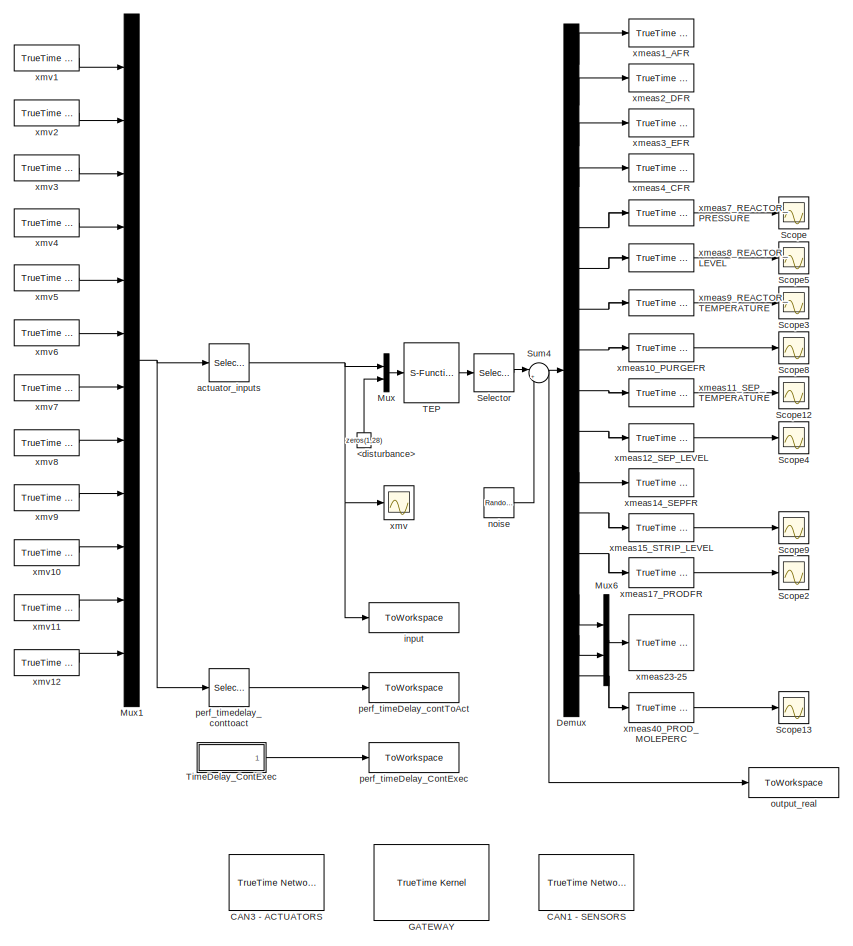
[diagram: root canvas - part 1/4, top left region]
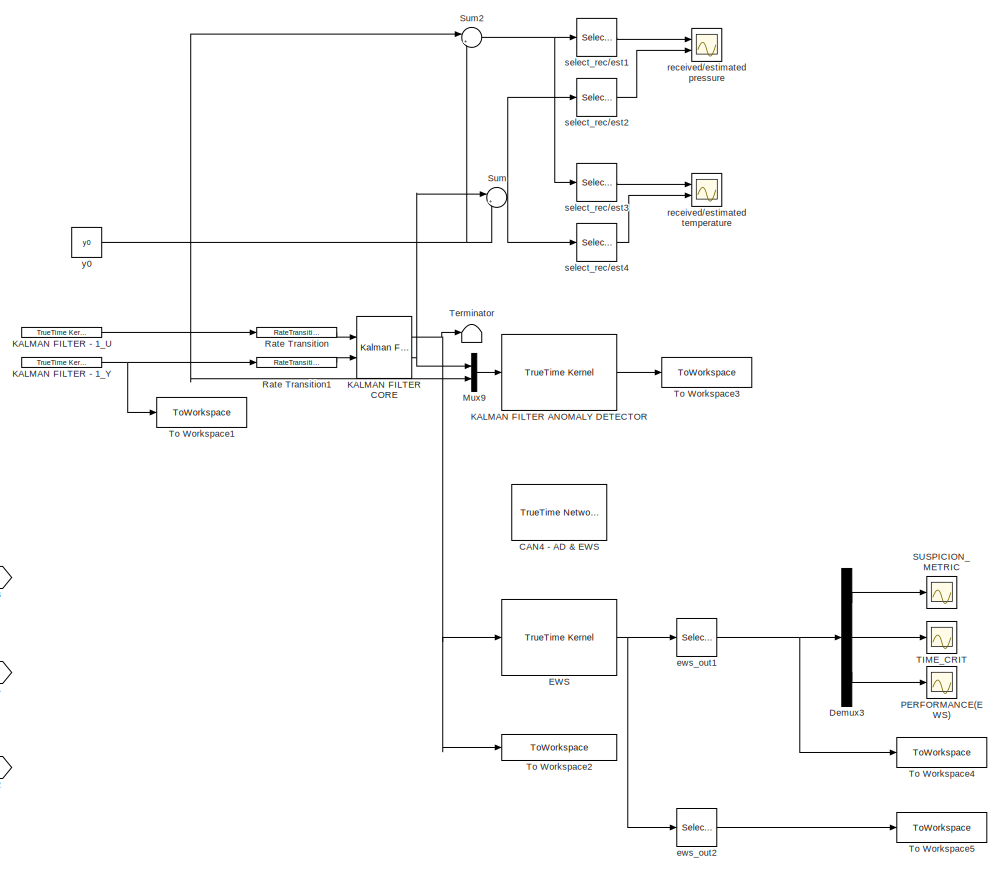
[diagram: root canvas - part 2/4, middle right region]
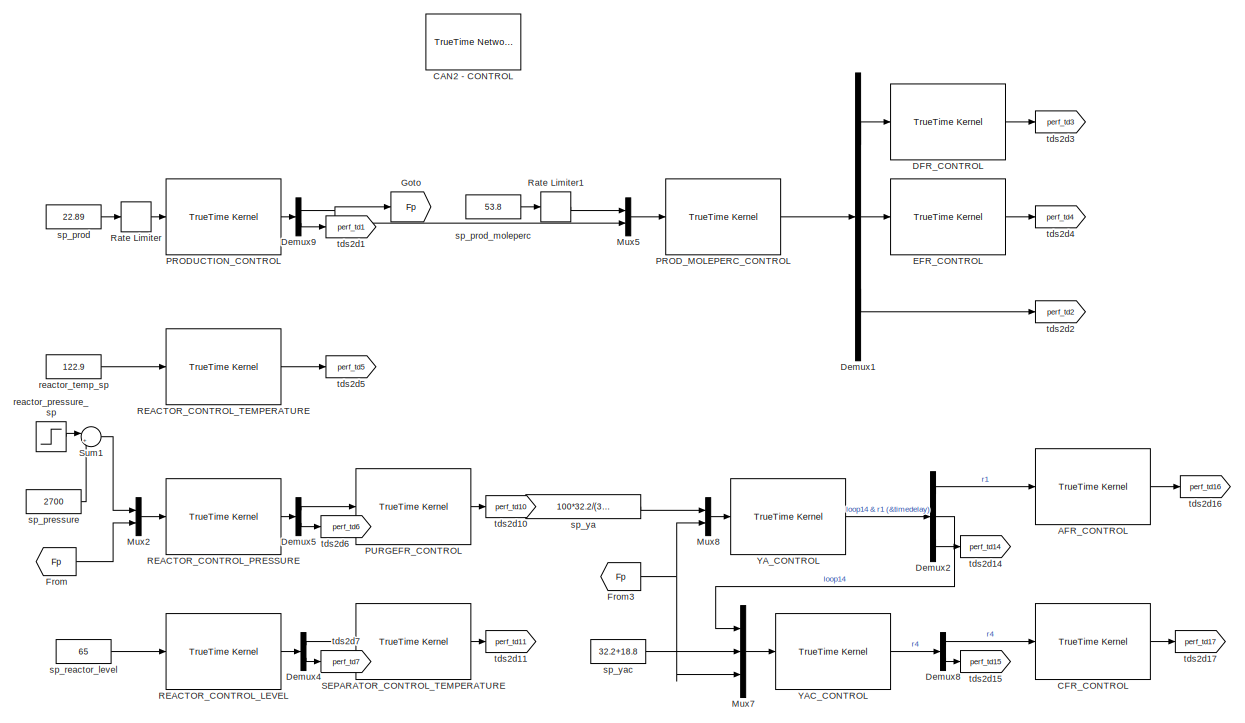
[diagram: root canvas - part 3/4, bottom left region]
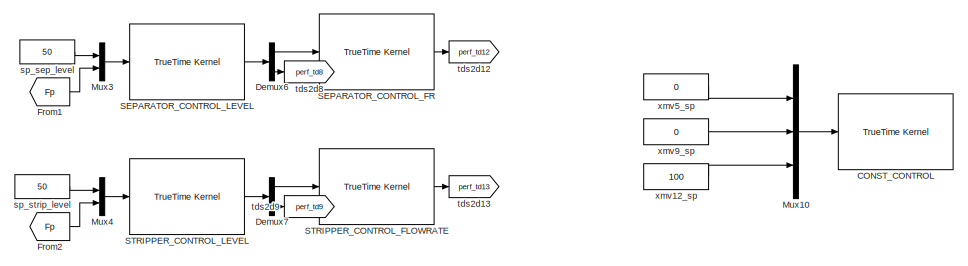
[diagram: root canvas - part 4/4, bottom left region]
MODEL slx_8490b7655759
KIND model
CONFIG AbsTol = auto
CONFIG EnableMultiTasking = on
CONFIG FixedStep = auto
CONFIG MaxStep = auto
CONFIG MinStep = auto
CONFIG PreLoadFcn = run('<path>\init_truetime');\naddpath('_tt');
CONFIG RelTol = 1e-3
CONFIG SampleTimeConstraint = Unconstrained
CONFIG SolverName = ode15s
CONFIG StartTime = 0.0
CONFIG StopTime = 2
BLOCK [Constant] <disturbance>
  NameLocation = right
  Value = zeros(1,28)
BLOCK [Reference] AFR_CONTROL  REF=truetime/TrueTime Kernel  (lib defined in slx_0362a698a4ec)
  Ports = [1, 1]
  SourceBlock = truetime/TrueTime Kernel
BLOCK [Reference] CAN1 - SENSORS  REF=truetime/TrueTime Network  (lib defined in slx_0362a698a4ec)
  Ports = []
  SourceBlock = truetime/TrueTime Network
  SourceType = Real-Time Network
BLOCK [Reference] CAN2 - CONTROL  REF=truetime/TrueTime Network  (lib defined in slx_0362a698a4ec)
  Ports = []
  SourceBlock = truetime/TrueTime Network
  SourceType = Real-Time Network
BLOCK [Reference] CAN3 - ACTUATORS  REF=truetime/TrueTime Network  (lib defined in slx_0362a698a4ec)
  Ports = []
  SourceBlock = truetime/TrueTime Network
  SourceType = Real-Time Network
BLOCK [Reference] CAN4 - AD & EWS  REF=truetime/TrueTime Network  (lib defined in slx_0362a698a4ec)
  Ports = []
  SourceBlock = truetime/TrueTime Network
  SourceType = Real-Time Network
BLOCK [Reference] CFR_CONTROL  REF=truetime/TrueTime Kernel  (lib defined in slx_0362a698a4ec)
  Ports = [1, 1]
  SourceBlock = truetime/TrueTime Kernel
BLOCK [Reference] CONST_CONTROL  REF=truetime/TrueTime Kernel  (lib defined in slx_0362a698a4ec)
  Ports = [1]
  SourceBlock = truetime/TrueTime Kernel
BLOCK [Reference] DFR_CONTROL  REF=truetime/TrueTime Kernel  (lib defined in slx_0362a698a4ec)
  Ports = [1, 1]
  SourceBlock = truetime/TrueTime Kernel
BLOCK [Demux] Demux
  DisplayOption = none
  Outputs = 16
  Ports = [1, 16]
BLOCK [Demux] Demux1
  Outputs = 3
  Ports = [1, 3]
BLOCK [Demux] Demux2
  Outputs = 3
  Ports = [1, 3]
BLOCK [Demux] Demux3
  Outputs = 3
  Ports = [1, 3]
BLOCK [Demux] Demux4
  Outputs = 2
  Ports = [1, 2]
BLOCK [Demux] Demux5
  Outputs = 2
  Ports = [1, 2]
BLOCK [Demux] Demux6
  Outputs = 2
  Ports = [1, 2]
BLOCK [Demux] Demux7
  Outputs = 2
  Ports = [1, 2]
BLOCK [Demux] Demux8
  Outputs = 2
  Ports = [1, 2]
BLOCK [Demux] Demux9
  Outputs = 2
  Ports = [1, 2]
BLOCK [Reference] EFR_CONTROL  REF=truetime/TrueTime Kernel  (lib defined in slx_0362a698a4ec)
  Ports = [1, 1]
  SourceBlock = truetime/TrueTime Kernel
BLOCK [Reference] EWS  REF=truetime/TrueTime Kernel  (lib defined in slx_0362a698a4ec)
  Ports = [1, 1]
  SourceBlock = truetime/TrueTime Kernel
BLOCK [From] From
  GotoTag = Fp
BLOCK [From] From1
  GotoTag = Fp
BLOCK [From] From2
  GotoTag = Fp
BLOCK [From] From3
  GotoTag = Fp
BLOCK [Reference] GATEWAY  REF=truetime/TrueTime Kernel  (lib defined in slx_0362a698a4ec)
  Ports = []
  SourceBlock = truetime/TrueTime Kernel
BLOCK [Goto] Goto
  GotoTag = Fp
BLOCK [Reference] KALMAN FILTER - 1_U  REF=truetime/TrueTime Kernel  (lib defined in slx_0362a698a4ec)
  Ports = [0, 1]
  SourceBlock = truetime/TrueTime Kernel
BLOCK [Reference] KALMAN FILTER - 1_Y  REF=truetime/TrueTime Kernel  (lib defined in slx_0362a698a4ec)
  Ports = [0, 1]
  SourceBlock = truetime/TrueTime Kernel
BLOCK [Reference] KALMAN FILTER ANOMALY DETECTOR  REF=truetime/TrueTime Kernel  (lib defined in slx_0362a698a4ec)
  Ports = [1, 1]
  SourceBlock = truetime/TrueTime Kernel
BLOCK [Reference] KALMAN FILTER CORE  REF=ctrlSharedLib/Kalman Filter
  Ports = [2, 2]
  SourceBlock = ctrlSharedLib/Kalman Filter
  SourceProductBaseCode = CT,ID
  SourceType = ctrlKalmanFilter
BLOCK [Mux] Mux
  DisplayOption = bar
  Inputs = 2
  Ports = [2, 1]
BLOCK [Mux] Mux1
  DisplayOption = bar
  Inputs = 12
  Ports = [12, 1]
BLOCK [Mux] Mux10
  DisplayOption = bar
  Inputs = 3
  Ports = [3, 1]
BLOCK [Mux] Mux2
  DisplayOption = bar
  Inputs = 2
  Ports = [2, 1]
BLOCK [Mux] Mux3
  DisplayOption = bar
  Inputs = 2
  Ports = [2, 1]
BLOCK [Mux] Mux4
  DisplayOption = bar
  Inputs = 2
  Ports = [2, 1]
BLOCK [Mux] Mux5
  DisplayOption = bar
  Inputs = 2
  Ports = [2, 1]
BLOCK [Mux] Mux6
  DisplayOption = bar
  Inputs = 2
  Ports = [2, 1]
BLOCK [Mux] Mux7
  DisplayOption = bar
  Inputs = 3
  Ports = [3, 1]
BLOCK [Mux] Mux8
  DisplayOption = bar
  Inputs = 2
  Ports = [2, 1]
BLOCK [Mux] Mux9
  DisplayOption = bar
  Inputs = 2
  Ports = [2, 1]
BLOCK [Scope] PERFORMANCE(EWS)
  Floating = off
  NumInputPorts = 1
  Ports = [1]
  ScopeSpecificationString = Simulink.scopes.TimeScopeBlockCfg('CurrentConfiguration', extmgr.ConfigurationSet(extmgr.Configuration('Core','General UI',true),extmgr.Configuration('Core','Source UI',true),extmgr.Configuration('Sources','WiredSimulink',true,'DataLoggingVariableName','ScopeData1'),extmgr.Configuration('Visuals','Time Domain',true,'SerializedDisplays',{struct('MinYLimReal','0.80981','MaxYLimReal','0.90389','YLabe...<+1481ch>
BLOCK [Reference] PRODUCTION_CONTROL  REF=truetime/TrueTime Kernel  (lib defined in slx_0362a698a4ec)
  Ports = [1, 1]
  SourceBlock = truetime/TrueTime Kernel
BLOCK [Reference] PROD_MOLEPERC_CONTROL  REF=truetime/TrueTime Kernel  (lib defined in slx_0362a698a4ec)
  Ports = [1, 1]
  SourceBlock = truetime/TrueTime Kernel
BLOCK [Reference] PURGEFR_CONTROL  REF=truetime/TrueTime Kernel  (lib defined in slx_0362a698a4ec)
  Ports = [1, 1]
  SourceBlock = truetime/TrueTime Kernel
BLOCK [Reference] REACTOR_CONTROL_LEVEL  REF=truetime/TrueTime Kernel  (lib defined in slx_0362a698a4ec)
  Ports = [1, 1]
  SourceBlock = truetime/TrueTime Kernel
BLOCK [Reference] REACTOR_CONTROL_PRESSURE  REF=truetime/TrueTime Kernel  (lib defined in slx_0362a698a4ec)
  Ports = [1, 1]
  SourceBlock = truetime/TrueTime Kernel
BLOCK [Reference] REACTOR_CONTROL_TEMPERATURE  REF=truetime/TrueTime Kernel  (lib defined in slx_0362a698a4ec)
  Ports = [1, 1]
  SourceBlock = truetime/TrueTime Kernel
BLOCK [RateLimiter] Rate Limiter
  FallingSlewLimit = -0.3*22.95/24
  RisingSlewLimit = 0.3*22.95/24
BLOCK [RateLimiter] Rate Limiter1
  FallingSlewLimit = -50/24
  RisingSlewLimit = 50/24
BLOCK [RateTransition] Rate Transition
  OutPortSampleTime = 5e-4
BLOCK [RateTransition] Rate Transition1
  OutPortSampleTime = 5e-4
BLOCK [Reference] SEPARATOR_CONTROL_FR  REF=truetime/TrueTime Kernel  (lib defined in slx_0362a698a4ec)
  Ports = [1, 1]
  SourceBlock = truetime/TrueTime Kernel
BLOCK [Reference] SEPARATOR_CONTROL_LEVEL  REF=truetime/TrueTime Kernel  (lib defined in slx_0362a698a4ec)
  Ports = [1, 1]
  SourceBlock = truetime/TrueTime Kernel
BLOCK [Reference] SEPARATOR_CONTROL_TEMPERATURE  REF=truetime/TrueTime Kernel  (lib defined in slx_0362a698a4ec)
  Ports = [1, 1]
  SourceBlock = truetime/TrueTime Kernel
BLOCK [Reference] STRIPPER_CONTROL_FLOWRATE  REF=truetime/TrueTime Kernel  (lib defined in slx_0362a698a4ec)
  Ports = [1, 1]
  SourceBlock = truetime/TrueTime Kernel
BLOCK [Reference] STRIPPER_CONTROL_LEVEL  REF=truetime/TrueTime Kernel  (lib defined in slx_0362a698a4ec)
  Ports = [1, 1]
  SourceBlock = truetime/TrueTime Kernel
BLOCK [Scope] SUSPICION_METRIC
  Floating = off
  NumInputPorts = 1
  Ports = [1]
  ScopeSpecificationString = Simulink.scopes.TimeScopeBlockCfg('CurrentConfiguration', extmgr.ConfigurationSet(extmgr.Configuration('Core','General UI',true),extmgr.Configuration('Core','Source UI',true),extmgr.Configuration('Sources','WiredSimulink',true,'DataLoggingVariableName','ScopeData1'),extmgr.Configuration('Visuals','Time Domain',true,'SerializedDisplays',{struct('MinYLimReal','-0.03571','MaxYLimReal','0.32139','YLab...<+1483ch>
BLOCK [Scope] Scope
  Floating = off
  NumInputPorts = 1
  Ports = [1]
  ScopeSpecificationString = Simulink.scopes.TimeScopeBlockCfg('CurrentConfiguration', extmgr.ConfigurationSet(extmgr.Configuration('Core','General UI',true),extmgr.Configuration('Core','Source UI',true),extmgr.Configuration('Sources','WiredSimulink',true,'DataLoggingVariableName','ScopeData1'),extmgr.Configuration('Visuals','Time Domain',true,'SerializedDisplays',{struct('MinYLimReal','2348.77961','MaxYLimReal','2745.66621',...<+1461ch>
BLOCK [Scope] Scope12
  Floating = off
  NumInputPorts = 1
  Ports = [1]
  ScopeSpecificationString = Simulink.scopes.TimeScopeBlockCfg('CurrentConfiguration', extmgr.ConfigurationSet(extmgr.Configuration('Core','General UI',true),extmgr.Configuration('Core','Source UI',true),extmgr.Configuration('Sources','WiredSimulink',true,'DataLoggingVariableName','ScopeData2'),extmgr.Configuration('Visuals','Time Domain',true,'SerializedDisplays',{struct('MinYLimReal','71.09724','MaxYLimReal','99.69901','YLa...<+1449ch>
BLOCK [Scope] Scope13
  Floating = off
  NumInputPorts = 1
  Ports = [1]
  ScopeSpecificationString = Simulink.scopes.TimeScopeBlockCfg('CurrentConfiguration', extmgr.ConfigurationSet(extmgr.Configuration('Core','General UI',true),extmgr.Configuration('Core','Source UI',true),extmgr.Configuration('Sources','WiredSimulink',true,'DataLoggingVariableName','ScopeData3'),extmgr.Configuration('Visuals','Time Domain',true,'SerializedDisplays',{struct('MinYLimReal','53.24496','MaxYLimReal','55.16243','YLa...<+1450ch>
BLOCK [Scope] Scope2
  Floating = off
  NumInputPorts = 1
  Ports = [1]
  ScopeSpecificationString = Simulink.scopes.TimeScopeBlockCfg('CurrentConfiguration', extmgr.ConfigurationSet(extmgr.Configuration('Core','General UI',true),extmgr.Configuration('Core','Source UI',true),extmgr.Configuration('Sources','WiredSimulink',true,'DataLoggingVariableName','ScopeData4'),extmgr.Configuration('Visuals','Time Domain',true,'SerializedDisplays',{struct('MinYLimReal','1.3748','MaxYLimReal','26.51506','YLabe...<+1441ch>
BLOCK [Scope] Scope3
  Floating = off
  NumInputPorts = 1
  Ports = [1]
  ScopeSpecificationString = Simulink.scopes.TimeScopeBlockCfg('CurrentConfiguration', extmgr.ConfigurationSet(extmgr.Configuration('Core','General UI',true),extmgr.Configuration('Core','Source UI',true),extmgr.Configuration('Sources','WiredSimulink',true,'DataLoggingVariableName','ScopeData5'),extmgr.Configuration('Visuals','Time Domain',true,'SerializedDisplays',{struct('MinYLimReal','33.79848','MaxYLimReal','158.93138','YL...<+1424ch>
BLOCK [Scope] Scope4
  Floating = off
  NumInputPorts = 1
  Ports = [1]
  ScopeSpecificationString = Simulink.scopes.TimeScopeBlockCfg('CurrentConfiguration', extmgr.ConfigurationSet(extmgr.Configuration('Core','General UI',true),extmgr.Configuration('Core','Source UI',true),extmgr.Configuration('Sources','WiredSimulink',true,'DataLoggingVariableName','ScopeData6'),extmgr.Configuration('Visuals','Time Domain',true,'SerializedDisplays',{struct('MinYLimReal','10.59593','MaxYLimReal','95.54926','YLa...<+1470ch>
BLOCK [Scope] Scope5
  Floating = off
  NumInputPorts = 1
  Ports = [1]
  ScopeSpecificationString = Simulink.scopes.TimeScopeBlockCfg('CurrentConfiguration', extmgr.ConfigurationSet(extmgr.Configuration('Core','General UI',true),extmgr.Configuration('Core','Source UI',true),extmgr.Configuration('Sources','WiredSimulink',true,'DataLoggingVariableName','ScopeData7'),extmgr.Configuration('Visuals','Time Domain',true,'SerializedDisplays',{struct('MinYLimReal','47.28151','MaxYLimReal','80.02784','YLa...<+1426ch>
BLOCK [Scope] Scope8
  Floating = off
  NumInputPorts = 1
  Ports = [1]
  ScopeSpecificationString = Simulink.scopes.TimeScopeBlockCfg('CurrentConfiguration', extmgr.ConfigurationSet(extmgr.Configuration('Core','General UI',true),extmgr.Configuration('Core','Source UI',true),extmgr.Configuration('Sources','WiredSimulink',true,'DataLoggingVariableName','ScopeData8'),extmgr.Configuration('Visuals','Time Domain',true,'SerializedDisplays',{struct('MinYLimReal','-0.41419','MaxYLimReal','0.6236','YLabe...<+1416ch>
BLOCK [Scope] Scope9
  Floating = off
  NumInputPorts = 1
  Ports = [1]
  ScopeSpecificationString = Simulink.scopes.TimeScopeBlockCfg('CurrentConfiguration', extmgr.ConfigurationSet(extmgr.Configuration('Core','General UI',true),extmgr.Configuration('Core','Source UI',true),extmgr.Configuration('Sources','WiredSimulink',true,'DataLoggingVariableName','ScopeData9'),extmgr.Configuration('Visuals','Time Domain',true,'SerializedDisplays',{struct('MinYLimReal','38.89071','MaxYLimReal','103.77988','YL...<+1450ch>
BLOCK [Selector] Selector
  IndexOptions = Index vector (dialog)
  Indices = [1:4, 7:12, 14, 15, 17, 23, 25, 40]
  InputPortWidth = 41
  OutputSizes = 1
  Ports = [1, 1]
BLOCK [Sum] Sum
  Inputs = |++
  Ports = [2, 1]
BLOCK [Sum] Sum1
  Inputs = |++
  Ports = [2, 1]
BLOCK [Sum] Sum2
  Inputs = |++
  Ports = [2, 1]
BLOCK [Sum] Sum4
  Inputs = |++
  Ports = [2, 1]
BLOCK [S-Function] TEP
  EnableBusSupport = off
  FunctionName = temexd_mod
  Parameters = [], [], 0
  Ports = [1, 1]
  SFcnIsStateOwnerBlock = off
  SFunctionDeploymentMode = off
BLOCK [Scope] TIME_CRIT
  Floating = off
  NumInputPorts = 1
  Ports = [1]
  ScopeSpecificationString = Simulink.scopes.TimeScopeBlockCfg('CurrentConfiguration', extmgr.ConfigurationSet(extmgr.Configuration('Core','General UI',true),extmgr.Configuration('Core','Source UI',true),extmgr.Configuration('Sources','WiredSimulink',true,'DataLoggingVariableName','ScopeData2'),extmgr.Configuration('Visuals','Time Domain',true,'SerializedDisplays',{struct('MinYLimReal','1.78655','MaxYLimReal','1.80731','YLabe...<+1481ch>
BLOCK [Terminator] Terminator
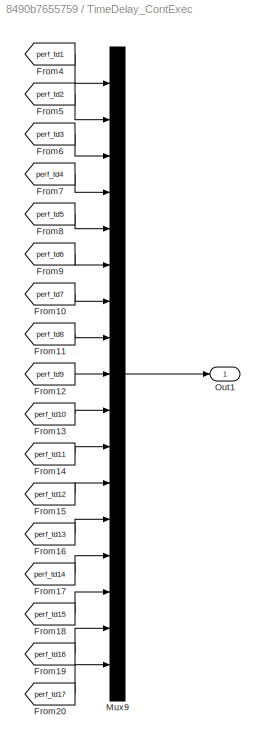
BLOCK [SubSystem] TimeDelay_ContExec
  Ports = [0, 1]
  RequestExecContextInheritance = off
BLOCK [From] TimeDelay_ContExec/From10
  GotoTag = perf_td7
  TagVisibility = global
BLOCK [From] TimeDelay_ContExec/From11
  GotoTag = perf_td8
  TagVisibility = global
BLOCK [From] TimeDelay_ContExec/From12
  GotoTag = perf_td9
  TagVisibility = global
BLOCK [From] TimeDelay_ContExec/From13
  GotoTag = perf_td10
  TagVisibility = global
BLOCK [From] TimeDelay_ContExec/From14
  GotoTag = perf_td11
  TagVisibility = global
BLOCK [From] TimeDelay_ContExec/From15
  GotoTag = perf_td12
  TagVisibility = global
BLOCK [From] TimeDelay_ContExec/From16
  GotoTag = perf_td13
  TagVisibility = global
BLOCK [From] TimeDelay_ContExec/From17
  GotoTag = perf_td14
  TagVisibility = global
BLOCK [From] TimeDelay_ContExec/From18
  GotoTag = perf_td15
  TagVisibility = global
BLOCK [From] TimeDelay_ContExec/From19
  GotoTag = perf_td16
  TagVisibility = global
BLOCK [From] TimeDelay_ContExec/From20
  GotoTag = perf_td17
  TagVisibility = global
BLOCK [From] TimeDelay_ContExec/From4
  GotoTag = perf_td1
  TagVisibility = global
BLOCK [From] TimeDelay_ContExec/From5
  GotoTag = perf_td2
  TagVisibility = global
BLOCK [From] TimeDelay_ContExec/From6
  GotoTag = perf_td3
  TagVisibility = global
BLOCK [From] TimeDelay_ContExec/From7
  GotoTag = perf_td4
  TagVisibility = global
BLOCK [From] TimeDelay_ContExec/From8
  GotoTag = perf_td5
  TagVisibility = global
BLOCK [From] TimeDelay_ContExec/From9
  GotoTag = perf_td6
  TagVisibility = global
BLOCK [Mux] TimeDelay_ContExec/Mux9
  DisplayOption = bar
  Inputs = 17
  Ports = [17, 1]
BLOCK [Outport] TimeDelay_ContExec/Out1
BLOCK [ToWorkspace] To Workspace1
  FixptAsFi = on
  MaxDataPoints = inf
  Ports = [1]
  SampleTime = 0.01
  VariableName = output_rec
BLOCK [ToWorkspace] To Workspace2
  FixptAsFi = on
  MaxDataPoints = inf
  Ports = [1]
  SampleTime = 0.01
  VariableName = states_estim
BLOCK [ToWorkspace] To Workspace3
  FixptAsFi = on
  MaxDataPoints = inf
  Ports = [1]
  SampleTime = 0.01
  VariableName = anomaly_detector
BLOCK [ToWorkspace] To Workspace4
  FixptAsFi = on
  MaxDataPoints = inf
  Ports = [1]
  SampleTime = 0.01
  VariableName = ews
BLOCK [ToWorkspace] To Workspace5
  FixptAsFi = on
  MaxDataPoints = inf
  Ports = [1]
  SampleTime = 0.01
  VariableName = ews_xinit
BLOCK [Reference] YAC_CONTROL  REF=truetime/TrueTime Kernel  (lib defined in slx_0362a698a4ec)
  Ports = [1, 1]
  SourceBlock = truetime/TrueTime Kernel
BLOCK [Reference] YA_CONTROL  REF=truetime/TrueTime Kernel  (lib defined in slx_0362a698a4ec)
  Ports = [1, 1]
  SourceBlock = truetime/TrueTime Kernel
BLOCK [Selector] actuator_inputs
  IndexOptions = Index vector (dialog)
  Indices = 1:2:23
  InputPortWidth = 24
  OutputSizes = 1
  Ports = [1, 1]
BLOCK [Selector] ews_out1
  IndexOptions = Index vector (dialog)
  Indices = 1:3
  InputPortWidth = size(ssid_est.A,1)+39+12+3
  OutputSizes = 1
  Ports = [1, 1]
BLOCK [Selector] ews_out2
  IndexOptions = Index vector (dialog)
  Indices = 4:(size(ssid_est.A,1)+39+12+3)
  InputPortWidth = size(ssid_est.A,1)+39+12+3
  OutputSizes = 1
  Ports = [1, 1]
BLOCK [ToWorkspace] input
  FixptAsFi = on
  MaxDataPoints = inf
  Ports = [1]
  SampleTime = 0.01
  VariableName = input
BLOCK [RandomNumber] noise
  Mean = zeros(16,1)
  SampleTime = 5e-4
  Variance = 0.01*ones(16,1)
BLOCK [ToWorkspace] output_real
  FixptAsFi = on
  MaxDataPoints = inf
  Ports = [1]
  SampleTime = 0.01
  VariableName = output_real
BLOCK [ToWorkspace] perf_timeDelay_ContExec
  FixptAsFi = on
  MaxDataPoints = inf
  Ports = [1]
  SampleTime = 0.01
  VariableName = perf_timeDelay_ContExec
BLOCK [ToWorkspace] perf_timeDelay_contToAct
  FixptAsFi = on
  MaxDataPoints = inf
  Ports = [1]
  SampleTime = 0.01
  VariableName = perf_timeDelay_contToAct
BLOCK [Selector] perf_timedelay_conttoact
  IndexOptions = Index vector (dialog)
  Indices = 2:2:24
  InputPortWidth = 24
  OutputSizes = 1
  Ports = [1, 1]
BLOCK [Step] reactor_pressure_sp
  After = 0
  SampleTime = 0
  Time = 40
BLOCK [Constant] reactor_temp_sp
  Value = 122.9
BLOCK [Scope] received//estimated pressure
  Floating = off
  NumInputPorts = 2
  Ports = [2]
  ScopeSpecificationString = Simulink.scopes.TimeScopeBlockCfg('CurrentConfiguration', extmgr.ConfigurationSet(extmgr.Configuration('Core','General UI',true),extmgr.Configuration('Core','Source UI',true),extmgr.Configuration('Sources','WiredSimulink',true,'DataLoggingVariableName','ScopeData5'),extmgr.Configuration('Visuals','Time Domain',true,'SerializedDisplays',{struct('MinYLimReal','2303.3011','MaxYLimReal','2769.66222','...<+1526ch>
BLOCK [Scope] received//estimated temperature
  Floating = off
  NumInputPorts = 2
  Ports = [2]
  ScopeSpecificationString = Simulink.scopes.TimeScopeBlockCfg('CurrentConfiguration', extmgr.ConfigurationSet(extmgr.Configuration('Core','General UI',true),extmgr.Configuration('Core','Source UI',true),extmgr.Configuration('Sources','WiredSimulink',true,'DataLoggingVariableName','ScopeData6'),extmgr.Configuration('Visuals','Time Domain',true,'SerializedDisplays',{struct('MinYLimReal','-141.13349','MaxYLimReal','697.92808','...<+1508ch>
BLOCK [Selector] select_rec//est1
  IndexOptions = Index vector (dialog)
  Indices = 5
  InputPortWidth = 16
  OutputSizes = 1
  Ports = [1, 1]
BLOCK [Selector] select_rec//est2
  IndexOptions = Index vector (dialog)
  Indices = 5
  InputPortWidth = 16
  OutputSizes = 1
  Ports = [1, 1]
BLOCK [Selector] select_rec//est3
  IndexOptions = Index vector (dialog)
  Indices = 7
  InputPortWidth = 16
  OutputSizes = 1
  Ports = [1, 1]
BLOCK [Selector] select_rec//est4
  IndexOptions = Index vector (dialog)
  Indices = 7
  InputPortWidth = 16
  OutputSizes = 1
  Ports = [1, 1]
BLOCK [Constant] sp_pressure
  Value = 2700
BLOCK [Constant] sp_prod
  Value = 22.89
BLOCK [Constant] sp_prod_moleperc
  Value = 53.8
BLOCK [Constant] sp_reactor_level
  Value = 65
BLOCK [Constant] sp_sep_level
  Value = 50
BLOCK [Constant] sp_strip_level
  Value = 50
BLOCK [Constant] sp_ya
  Value = 100*32.2/(32.2+18.8)
BLOCK [Constant] sp_yac
  Value = 32.2+18.8
BLOCK [Goto] tds2d1
  GotoTag = perf_td1
  TagVisibility = global
BLOCK [Goto] tds2d10
  GotoTag = perf_td10
  TagVisibility = global
BLOCK [Goto] tds2d11
  GotoTag = perf_td11
  TagVisibility = global
BLOCK [Goto] tds2d12
  GotoTag = perf_td12
  TagVisibility = global
BLOCK [Goto] tds2d13
  GotoTag = perf_td13
  TagVisibility = global
BLOCK [Goto] tds2d14
  GotoTag = perf_td14
  TagVisibility = global
BLOCK [Goto] tds2d15
  GotoTag = perf_td15
  TagVisibility = global
BLOCK [Goto] tds2d16
  GotoTag = perf_td16
  TagVisibility = global
BLOCK [Goto] tds2d17
  GotoTag = perf_td17
  TagVisibility = global
BLOCK [Goto] tds2d2
  GotoTag = perf_td2
  TagVisibility = global
BLOCK [Goto] tds2d3
  GotoTag = perf_td3
  TagVisibility = global
BLOCK [Goto] tds2d4
  GotoTag = perf_td4
  TagVisibility = global
BLOCK [Goto] tds2d5
  GotoTag = perf_td5
  TagVisibility = global
BLOCK [Goto] tds2d6
  GotoTag = perf_td6
  TagVisibility = global
BLOCK [Goto] tds2d7
  GotoTag = perf_td7
  TagVisibility = global
BLOCK [Goto] tds2d8
  GotoTag = perf_td8
  TagVisibility = global
BLOCK [Goto] tds2d9
  GotoTag = perf_td9
  TagVisibility = global
BLOCK [Reference] xmeas10_PURGEFR  REF=truetime/TrueTime Kernel  (lib defined in slx_0362a698a4ec)
  Ports = [1]
  SourceBlock = truetime/TrueTime Kernel
BLOCK [Reference] xmeas11_SEP_TEMPERATURE  REF=truetime/TrueTime Kernel  (lib defined in slx_0362a698a4ec)
  Ports = [1]
  SourceBlock = truetime/TrueTime Kernel
BLOCK [Reference] xmeas12_SEP_LEVEL  REF=truetime/TrueTime Kernel  (lib defined in slx_0362a698a4ec)
  Ports = [1]
  SourceBlock = truetime/TrueTime Kernel
BLOCK [Reference] xmeas14_SEPFR  REF=truetime/TrueTime Kernel  (lib defined in slx_0362a698a4ec)
  Ports = [1]
  SourceBlock = truetime/TrueTime Kernel
BLOCK [Reference] xmeas15_STRIP_LEVEL  REF=truetime/TrueTime Kernel  (lib defined in slx_0362a698a4ec)
  Ports = [1]
  SourceBlock = truetime/TrueTime Kernel
BLOCK [Reference] xmeas17_PRODFR  REF=truetime/TrueTime Kernel  (lib defined in slx_0362a698a4ec)
  Ports = [1]
  SourceBlock = truetime/TrueTime Kernel
BLOCK [Reference] xmeas1_AFR  REF=truetime/TrueTime Kernel  (lib defined in slx_0362a698a4ec)
  Ports = [1]
  SourceBlock = truetime/TrueTime Kernel
BLOCK [Reference] xmeas23-25  REF=truetime/TrueTime Kernel  (lib defined in slx_0362a698a4ec)
  Ports = [1]
  SourceBlock = truetime/TrueTime Kernel
BLOCK [Reference] xmeas2_DFR  REF=truetime/TrueTime Kernel  (lib defined in slx_0362a698a4ec)
  Ports = [1]
  SourceBlock = truetime/TrueTime Kernel
BLOCK [Reference] xmeas3_EFR  REF=truetime/TrueTime Kernel  (lib defined in slx_0362a698a4ec)
  Ports = [1]
  SourceBlock = truetime/TrueTime Kernel
BLOCK [Reference] xmeas40_PROD_MOLEPERC  REF=truetime/TrueTime Kernel  (lib defined in slx_0362a698a4ec)
  Ports = [1]
  SourceBlock = truetime/TrueTime Kernel
BLOCK [Reference] xmeas4_CFR  REF=truetime/TrueTime Kernel  (lib defined in slx_0362a698a4ec)
  Ports = [1]
  SourceBlock = truetime/TrueTime Kernel
BLOCK [Reference] xmeas7_REACTOR_PRESSURE  REF=truetime/TrueTime Kernel  (lib defined in slx_0362a698a4ec)
  Ports = [1]
  SourceBlock = truetime/TrueTime Kernel
BLOCK [Reference] xmeas8_REACTOR_LEVEL  REF=truetime/TrueTime Kernel  (lib defined in slx_0362a698a4ec)
  Ports = [1]
  SourceBlock = truetime/TrueTime Kernel
BLOCK [Reference] xmeas9_REACTOR_TEMPERATURE  REF=truetime/TrueTime Kernel  (lib defined in slx_0362a698a4ec)
  Ports = [1]
  SourceBlock = truetime/TrueTime Kernel
BLOCK [Scope] xmv
  Commented = on
  Floating = off
  NumInputPorts = 1
  Ports = [1]
  ScopeSpecificationString = Simulink.scopes.TimeScopeBlockCfg('CurrentConfiguration', extmgr.ConfigurationSet(extmgr.Configuration('Core','General UI',true),extmgr.Configuration('Core','Source UI',true),extmgr.Configuration('Sources','WiredSimulink',true,'DataLoggingVariableName','ScopeData10'),extmgr.Configuration('Visuals','Time Domain',true,'SerializedDisplays',{struct('MinYLimReal','-12.5','MaxYLimReal','112.5','YLabelRe...<+1758ch>
BLOCK [Reference] xmv1  REF=truetime/TrueTime Kernel  (lib defined in slx_0362a698a4ec)
  Ports = [0, 1]
  SourceBlock = truetime/TrueTime Kernel
BLOCK [Reference] xmv10  REF=truetime/TrueTime Kernel  (lib defined in slx_0362a698a4ec)
  Ports = [0, 1]
  SourceBlock = truetime/TrueTime Kernel
BLOCK [Reference] xmv11  REF=truetime/TrueTime Kernel  (lib defined in slx_0362a698a4ec)
  Ports = [0, 1]
  SourceBlock = truetime/TrueTime Kernel
BLOCK [Reference] xmv12  REF=truetime/TrueTime Kernel  (lib defined in slx_0362a698a4ec)
  Ports = [0, 1]
  SourceBlock = truetime/TrueTime Kernel
BLOCK [Constant] xmv12_sp
  Value = 100
BLOCK [Reference] xmv2  REF=truetime/TrueTime Kernel  (lib defined in slx_0362a698a4ec)
  Ports = [0, 1]
  SourceBlock = truetime/TrueTime Kernel
BLOCK [Reference] xmv3  REF=truetime/TrueTime Kernel  (lib defined in slx_0362a698a4ec)
  Ports = [0, 1]
  SourceBlock = truetime/TrueTime Kernel
BLOCK [Reference] xmv4  REF=truetime/TrueTime Kernel  (lib defined in slx_0362a698a4ec)
  Ports = [0, 1]
  SourceBlock = truetime/TrueTime Kernel
BLOCK [Reference] xmv5  REF=truetime/TrueTime Kernel  (lib defined in slx_0362a698a4ec)
  Ports = [0, 1]
  SourceBlock = truetime/TrueTime Kernel
BLOCK [Constant] xmv5_sp
  Value = 0
BLOCK [Reference] xmv6  REF=truetime/TrueTime Kernel  (lib defined in slx_0362a698a4ec)
  Ports = [0, 1]
  SourceBlock = truetime/TrueTime Kernel
BLOCK [Reference] xmv7  REF=truetime/TrueTime Kernel  (lib defined in slx_0362a698a4ec)
  Ports = [0, 1]
  SourceBlock = truetime/TrueTime Kernel
BLOCK [Reference] xmv8  REF=truetime/TrueTime Kernel  (lib defined in slx_0362a698a4ec)
  Ports = [0, 1]
  SourceBlock = truetime/TrueTime Kernel
BLOCK [Reference] xmv9  REF=truetime/TrueTime Kernel  (lib defined in slx_0362a698a4ec)
  Ports = [0, 1]
  SourceBlock = truetime/TrueTime Kernel
BLOCK [Constant] xmv9_sp
  Value = 0
BLOCK [Constant] y0
  Value = y0
LINE <disturbance>:1 -> Mux:2
LINE AFR_CONTROL:1 -> tds2d16:1
LINE CFR_CONTROL:1 -> tds2d17:1
LINE DFR_CONTROL:1 -> tds2d3:1
LINE Demux1:1 -> DFR_CONTROL:1
LINE Demux1:2 -> EFR_CONTROL:1
LINE Demux1:3 -> tds2d2:1
LINE Demux2:1 -> AFR_CONTROL:1
LINE Demux2:2 -> Mux7:1
LINE Demux2:3 -> tds2d14:1
LINE Demux3:1 -> SUSPICION_METRIC:1
LINE Demux3:2 -> TIME_CRIT:1
LINE Demux3:3 -> PERFORMANCE(EWS):1
LINE Demux4:1 -> SEPARATOR_CONTROL_TEMPERATURE:1
LINE Demux4:2 -> tds2d7:1
LINE Demux5:1 -> PURGEFR_CONTROL:1
LINE Demux5:2 -> tds2d6:1
LINE Demux6:1 -> SEPARATOR_CONTROL_FR:1
LINE Demux6:2 -> tds2d8:1
LINE Demux7:1 -> STRIPPER_CONTROL_FLOWRATE:1
LINE Demux7:2 -> tds2d9:1
LINE Demux8:1 -> CFR_CONTROL:1
LINE Demux8:2 -> tds2d15:1
NET Demux9:1 -> Goto:1, Mux5:2
LINE Demux9:2 -> tds2d1:1
LINE Demux:1 -> xmeas1_AFR:1
NET Demux:10 -> Scope4:1, xmeas12_SEP_LEVEL:1
LINE Demux:11 -> xmeas14_SEPFR:1
NET Demux:12 -> Scope9:1, xmeas15_STRIP_LEVEL:1
NET Demux:13 -> Scope2:1, xmeas17_PRODFR:1
LINE Demux:14 -> Mux6:1
LINE Demux:15 -> Mux6:2
NET Demux:16 -> Scope13:1, xmeas40_PROD_MOLEPERC:1
LINE Demux:2 -> xmeas2_DFR:1
LINE Demux:3 -> xmeas3_EFR:1
LINE Demux:4 -> xmeas4_CFR:1
NET Demux:5 -> Scope:1, xmeas7_REACTOR_PRESSURE:1
NET Demux:6 -> Scope5:1, xmeas8_REACTOR_LEVEL:1
NET Demux:7 -> Scope3:1, xmeas9_REACTOR_TEMPERATURE:1
NET Demux:8 -> Scope8:1, xmeas10_PURGEFR:1
NET Demux:9 -> Scope12:1, xmeas11_SEP_TEMPERATURE:1
LINE EFR_CONTROL:1 -> tds2d4:1
NET EWS:1 -> ews_out1:1, ews_out2:1
LINE From1:1 -> Mux3:2
LINE From2:1 -> Mux4:2
NET From3:1 -> Mux7:3, Mux8:2
LINE From:1 -> Mux2:2
LINE KALMAN FILTER - 1_U:1 -> Rate Transition:1
NET KALMAN FILTER - 1_Y:1 -> Mux9:2, Rate Transition1:1, Sum2:1, To Workspace1:1
LINE KALMAN FILTER ANOMALY DETECTOR:1 -> To Workspace3:1
NET KALMAN FILTER CORE:1 -> EWS:1, Terminator:1, To Workspace2:1
NET KALMAN FILTER CORE:2 -> Mux9:1, Sum:1
LINE Mux10:1 -> CONST_CONTROL:1
NET Mux1:1 -> actuator_inputs:1, perf_timedelay_conttoact:1
LINE Mux2:1 -> REACTOR_CONTROL_PRESSURE:1
LINE Mux3:1 -> SEPARATOR_CONTROL_LEVEL:1
LINE Mux4:1 -> STRIPPER_CONTROL_LEVEL:1
LINE Mux5:1 -> PROD_MOLEPERC_CONTROL:1
LINE Mux6:1 -> xmeas23-25:1
LINE Mux7:1 -> YAC_CONTROL:1
LINE Mux8:1 -> YA_CONTROL:1
LINE Mux9:1 -> KALMAN FILTER ANOMALY DETECTOR:1
LINE Mux:1 -> TEP:1
LINE PRODUCTION_CONTROL:1 -> Demux9:1
LINE PROD_MOLEPERC_CONTROL:1 -> Demux1:1
LINE PURGEFR_CONTROL:1 -> tds2d10:1
LINE REACTOR_CONTROL_LEVEL:1 -> Demux4:1
LINE REACTOR_CONTROL_PRESSURE:1 -> Demux5:1
LINE REACTOR_CONTROL_TEMPERATURE:1 -> tds2d5:1
LINE Rate Limiter1:1 -> Mux5:1
LINE Rate Limiter:1 -> PRODUCTION_CONTROL:1
LINE Rate Transition1:1 -> KALMAN FILTER CORE:2
LINE Rate Transition:1 -> KALMAN FILTER CORE:1
LINE SEPARATOR_CONTROL_FR:1 -> tds2d12:1
LINE SEPARATOR_CONTROL_LEVEL:1 -> Demux6:1
LINE SEPARATOR_CONTROL_TEMPERATURE:1 -> tds2d11:1
LINE STRIPPER_CONTROL_FLOWRATE:1 -> tds2d13:1
LINE STRIPPER_CONTROL_LEVEL:1 -> Demux7:1
LINE Selector:1 -> Sum4:1
LINE Sum1:1 -> Mux2:1
NET Sum2:1 -> select_rec//est1:1, select_rec//est3:1
NET Sum4:1 -> Demux:1, output_real:1
NET Sum:1 -> select_rec//est2:1, select_rec//est4:1
LINE TEP:1 -> Selector:1
LINE TimeDelay_ContExec/From10:1 -> TimeDelay_ContExec/Mux9:7
LINE TimeDelay_ContExec/From11:1 -> TimeDelay_ContExec/Mux9:8
LINE TimeDelay_ContExec/From12:1 -> TimeDelay_ContExec/Mux9:9
LINE TimeDelay_ContExec/From13:1 -> TimeDelay_ContExec/Mux9:10
LINE TimeDelay_ContExec/From14:1 -> TimeDelay_ContExec/Mux9:11
LINE TimeDelay_ContExec/From15:1 -> TimeDelay_ContExec/Mux9:12
LINE TimeDelay_ContExec/From16:1 -> TimeDelay_ContExec/Mux9:13
LINE TimeDelay_ContExec/From17:1 -> TimeDelay_ContExec/Mux9:14
LINE TimeDelay_ContExec/From18:1 -> TimeDelay_ContExec/Mux9:15
LINE TimeDelay_ContExec/From19:1 -> TimeDelay_ContExec/Mux9:16
LINE TimeDelay_ContExec/From20:1 -> TimeDelay_ContExec/Mux9:17
LINE TimeDelay_ContExec/From4:1 -> TimeDelay_ContExec/Mux9:1
LINE TimeDelay_ContExec/From5:1 -> TimeDelay_ContExec/Mux9:2
LINE TimeDelay_ContExec/From6:1 -> TimeDelay_ContExec/Mux9:3
LINE TimeDelay_ContExec/From7:1 -> TimeDelay_ContExec/Mux9:4
LINE TimeDelay_ContExec/From8:1 -> TimeDelay_ContExec/Mux9:5
LINE TimeDelay_ContExec/From9:1 -> TimeDelay_ContExec/Mux9:6
LINE TimeDelay_ContExec/Mux9:1 -> TimeDelay_ContExec/Out1:1
LINE TimeDelay_ContExec:1 -> perf_timeDelay_ContExec:1
LINE YAC_CONTROL:1 -> Demux8:1
LINE YA_CONTROL:1 -> Demux2:1
NET actuator_inputs:1 -> Mux:1, input:1, xmv:1
NET ews_out1:1 -> Demux3:1, To Workspace4:1
LINE ews_out2:1 -> To Workspace5:1
LINE noise:1 -> Sum4:2
LINE perf_timedelay_conttoact:1 -> perf_timeDelay_contToAct:1
LINE reactor_pressure_sp:1 -> Sum1:1
LINE reactor_temp_sp:1 -> REACTOR_CONTROL_TEMPERATURE:1
LINE select_rec//est1:1 -> received//estimated pressure:1
LINE select_rec//est2:1 -> received//estimated pressure:2
LINE select_rec//est3:1 -> received//estimated temperature:1
LINE select_rec//est4:1 -> received//estimated temperature:2
LINE sp_pressure:1 -> Sum1:2
LINE sp_prod:1 -> Rate Limiter:1
LINE sp_prod_moleperc:1 -> Rate Limiter1:1
LINE sp_reactor_level:1 -> REACTOR_CONTROL_LEVEL:1
LINE sp_sep_level:1 -> Mux3:1
LINE sp_strip_level:1 -> Mux4:1
LINE sp_ya:1 -> Mux8:1
LINE sp_yac:1 -> Mux7:2
LINE xmv10:1 -> Mux1:10
LINE xmv11:1 -> Mux1:11
LINE xmv12:1 -> Mux1:12
LINE xmv12_sp:1 -> Mux10:3
LINE xmv1:1 -> Mux1:1
LINE xmv2:1 -> Mux1:2
LINE xmv3:1 -> Mux1:3
LINE xmv4:1 -> Mux1:4
LINE xmv5:1 -> Mux1:5
LINE xmv5_sp:1 -> Mux10:1
LINE xmv6:1 -> Mux1:6
LINE xmv7:1 -> Mux1:7
LINE xmv8:1 -> Mux1:8
LINE xmv9:1 -> Mux1:9
LINE xmv9_sp:1 -> Mux10:2
NET y0:1 -> Sum2:2, Sum:2
note: NET lines group one-source signal fan-out (src -> all destinations, sorted); 1:1 wires keep LINE
note: 1 file-system path scrubbed to <path> (not preserved elsewhere — flat text is the only slx artifact)
